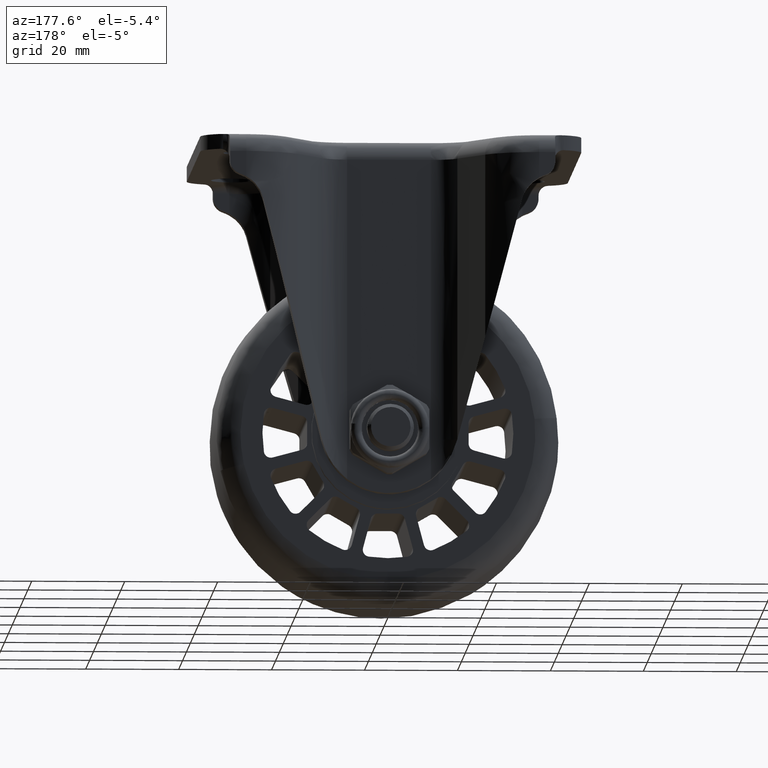
[diagram: clean part render]
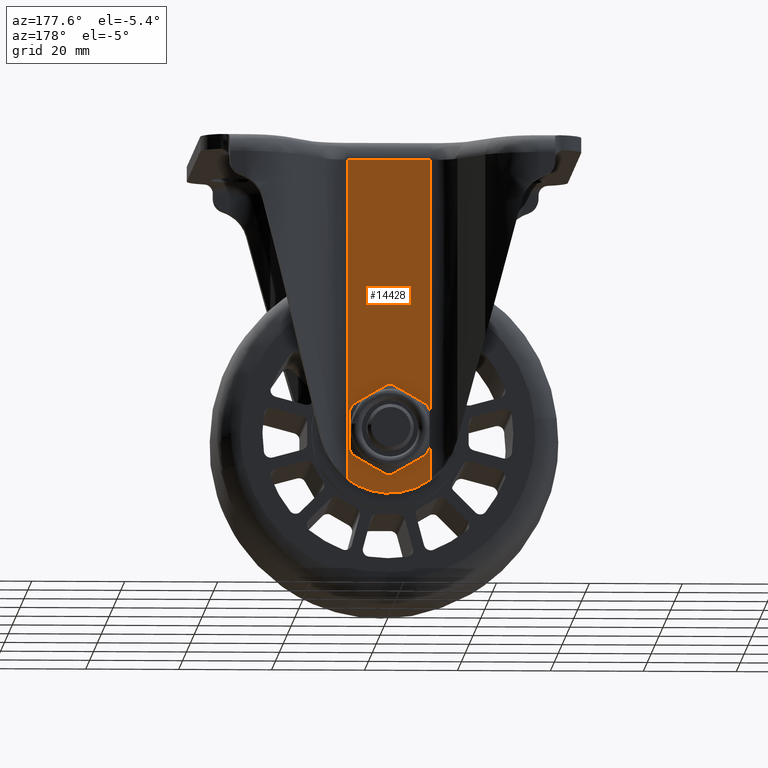
[diagram: same view with one face highlighted and labeled with its STEP entity id]
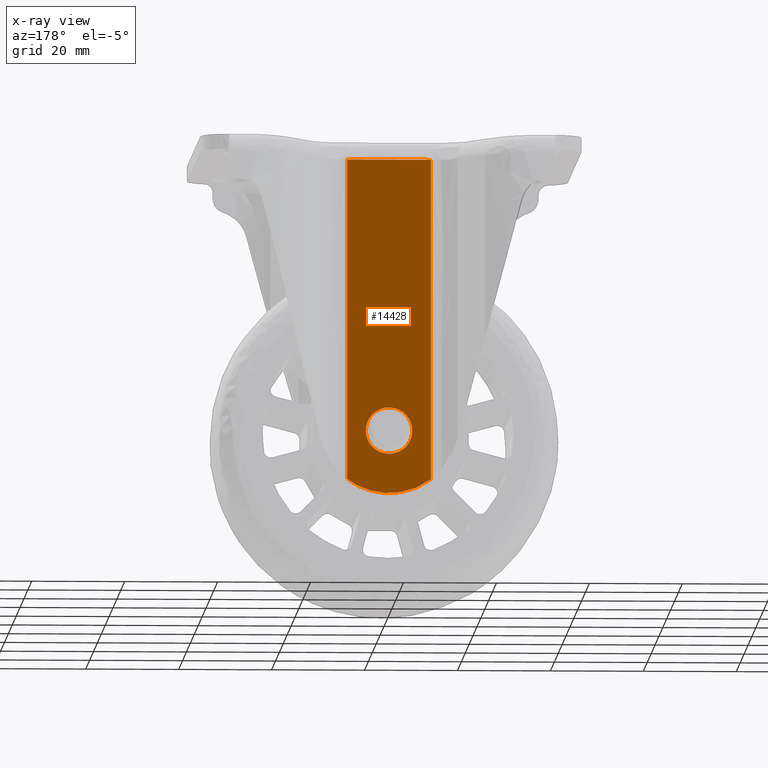
[diagram: x-ray of the same camera — body ghosted, the highlighted face saturated]
A machine part, auxiliary view. The second image highlights one B-rep face of the part: STEP entity #14428.
The next image is the same camera in x-ray: the body ghosted, the highlighted face saturated — about 0% of this face is hidden behind the body in this view.
In plain terms, the highlighted face is a freeform B-spline surface patch.
Its self-contained STEP definition (entity closure, byte-faithful):
#6301=CARTESIAN_POINT('',(-3.069330818615148,25.699997000000149,-66.447050585677459));
#6302=VERTEX_POINT('',#6301);
#6303=CARTESIAN_POINT('',(0.0,25.699997000000149,-67.500000000000000));
#6304=VERTEX_POINT('',#6303);
#6305=CARTESIAN_POINT('',(-3.069330818615301,25.699997000000149,-66.447050585677644));
#6306=CARTESIAN_POINT('',(-1.715275212330114,25.699997000000149,-67.500000000000000));
#6307=CARTESIAN_POINT('',(0.0,25.699997000000149,-67.500000000000000));
#6315=(BOUNDED_CURVE()B_SPLINE_CURVE(2,(#6305,#6306,#6307),.UNSPECIFIED.,.F.,.U.)B_SPLINE_CURVE_WITH_KNOTS((3,3),(0.893802223641509,1.0),.UNSPECIFIED.)CURVE()GEOMETRIC_REPRESENTATION_ITEM()RATIONAL_B_SPLINE_CURVE((0.856866820007404,0.875581565806122,1.0))REPRESENTATION_ITEM(''));
#6316=EDGE_CURVE('',#6302,#6304,#6315,.T.);
#6359=CARTESIAN_POINT('',(-3.566252441452725,25.699997000000149,-58.995453877628023));
#6360=VERTEX_POINT('',#6359);
#6366=CARTESIAN_POINT('',(0.0,25.699997000000149,-57.500000000000000));
#6367=VERTEX_POINT('',#6366);
#6368=CARTESIAN_POINT('',(0.0,25.699997000000149,-57.500000000000000));
#6369=CARTESIAN_POINT('',(-2.096674337066742,25.699997000000153,-57.499999999999993));
#6370=CARTESIAN_POINT('',(-3.566252441452726,25.699997000000149,-58.995453877628023));
#6378=(BOUNDED_CURVE()B_SPLINE_CURVE(2,(#6368,#6369,#6370),.UNSPECIFIED.,.F.,.U.)B_SPLINE_CURVE_WITH_KNOTS((3,3),(0.500000000000000,0.626316774441586),.UNSPECIFIED.)CURVE()GEOMETRIC_REPRESENTATION_ITEM()RATIONAL_B_SPLINE_CURVE((1.0,0.852010693374684,0.853569641667422))REPRESENTATION_ITEM(''));
#6379=EDGE_CURVE('',#6367,#6360,#6378,.T.);
#6381=CARTESIAN_POINT('',(0.0,25.699997000000149,-67.500000000000000));
#6382=CARTESIAN_POINT('',(5.000000000000001,25.699997000000156,-67.500000000000000));
#6383=CARTESIAN_POINT('',(5.0,25.699997000000149,-62.500000000000000));
#6384=CARTESIAN_POINT('',(5.000000000000001,25.699997000000156,-57.499999999999986));
#6385=CARTESIAN_POINT('',(0.0,25.699997000000149,-57.500000000000000));
#6393=(BOUNDED_CURVE()B_SPLINE_CURVE(2,(#6381,#6382,#6383,#6384,#6385),.UNSPECIFIED.,.F.,.U.)B_SPLINE_CURVE_WITH_KNOTS((3,2,3),(0.0,0.250000000000000,0.500000000000000),.UNSPECIFIED.)CURVE()GEOMETRIC_REPRESENTATION_ITEM()RATIONAL_B_SPLINE_CURVE((1.0,0.707106781186548,1.0,0.707106781186548,1.0))REPRESENTATION_ITEM(''));
#6394=EDGE_CURVE('',#6304,#6367,#6393,.T.);
#6417=CARTESIAN_POINT('',(-3.566252441452726,25.699997000000149,-58.995453877628023));
#6418=CARTESIAN_POINT('',(-5.0,25.699997000000153,-60.454446318771552));
#6419=CARTESIAN_POINT('',(-5.0,25.699997000000149,-62.500000000000000));
#6420=CARTESIAN_POINT('',(-5.000000000000001,25.699997000000149,-64.945711220918156));
#6421=CARTESIAN_POINT('',(-3.069330818615299,25.699997000000149,-66.447050585677644));
#6429=(BOUNDED_CURVE()B_SPLINE_CURVE(2,(#6417,#6418,#6419,#6420,#6421),.UNSPECIFIED.,.F.,.U.)B_SPLINE_CURVE_WITH_KNOTS((3,2,3),(0.626316774441586,0.750000000000000,0.893802223641509),.UNSPECIFIED.)CURVE()GEOMETRIC_REPRESENTATION_ITEM()RATIONAL_B_SPLINE_CURVE((0.853569641667422,0.855096087811864,1.0,0.831525215380426,0.856866820007404))REPRESENTATION_ITEM(''));
#6430=EDGE_CURVE('',#6360,#6302,#6429,.T.);
#8503=CARTESIAN_POINT('',(-9.000004537855819,25.699997000000149,-72.999996596606906));
#8504=VERTEX_POINT('',#8503);
#8532=CARTESIAN_POINT('',(9.0,25.699997000000099,-73.0));
#8533=VERTEX_POINT('',#8532);
#8534=CARTESIAN_POINT('',(-9.000004537855775,25.699997000000149,-72.999996596606834));
#8535=CARTESIAN_POINT('',(-0.000003545200833,25.699997000000153,-79.750002658900627));
#8536=CARTESIAN_POINT('',(8.999999999999996,25.699997000000149,-73.000000000000014));
#8544=(BOUNDED_CURVE()B_SPLINE_CURVE(2,(#8534,#8535,#8536),.UNSPECIFIED.,.F.,.U.)CURVE()GEOMETRIC_REPRESENTATION_ITEM()QUASI_UNIFORM_CURVE()RATIONAL_B_SPLINE_CURVE((1.0,0.799999886553575,1.0))REPRESENTATION_ITEM(''));
#8545=EDGE_CURVE('',#8504,#8533,#8544,.T.);
#12733=CARTESIAN_POINT('',(-9.000004537855819,25.699997000001702,-4.0));
#12734=VERTEX_POINT('',#12733);
#12794=CARTESIAN_POINT('',(9.0,25.699997000000099,-4.0));
#12795=VERTEX_POINT('',#12794);
#12809=CARTESIAN_POINT('',(-9.000004537855819,25.699997000001702,-4.0));
#12810=CARTESIAN_POINT('',(9.0,25.699997000000099,-4.0));
#12811=QUASI_UNIFORM_CURVE('',1,(#12809,#12810),.UNSPECIFIED.,.F.,.U.);
#12812=EDGE_CURVE('',#12734,#12795,#12811,.T.);
#14392=CARTESIAN_POINT('',(9.0,25.699997000000099,-73.0));
#14393=CARTESIAN_POINT('',(9.0,25.699997000000099,-4.0));
#14394=QUASI_UNIFORM_CURVE('',1,(#14392,#14393),.UNSPECIFIED.,.F.,.U.);
#14395=EDGE_CURVE('',#8533,#12795,#14394,.T.);
#14407=CARTESIAN_POINT('',(-9.899105067576544,25.699997000000099,-0.403600139549977));
#14408=CARTESIAN_POINT('',(-9.899105067576544,25.699997000000099,-79.596401791640417));
#14409=CARTESIAN_POINT('',(9.899100690653304,25.699997000000099,-0.403600139549977));
#14410=CARTESIAN_POINT('',(9.899100690653304,25.699997000000099,-79.596401791640417));
#14411=B_SPLINE_SURFACE_WITH_KNOTS('',1,1,((#14407,#14409),(#14408,#14410)),.UNSPECIFIED.,.F.,.F.,.U.,(2,2),(2,2),(0.0,79.192801652090438),(0.0,19.798205758229852),.UNSPECIFIED.);
#14412=ORIENTED_EDGE('',*,*,#8545,.F.);
#14413=CARTESIAN_POINT('',(-9.000004537855819,25.699997000000149,-72.999996596606906));
#14414=CARTESIAN_POINT('',(-9.000004537855819,25.699997000001702,-4.0));
#14415=QUASI_UNIFORM_CURVE('',1,(#14413,#14414),.UNSPECIFIED.,.F.,.U.);
#14416=EDGE_CURVE('',#8504,#12734,#14415,.T.);
#14417=ORIENTED_EDGE('',*,*,#14416,.T.);
#14418=ORIENTED_EDGE('',*,*,#12812,.T.);
#14419=ORIENTED_EDGE('',*,*,#14395,.F.);
#14420=EDGE_LOOP('',(#14412,#14417,#14418,#14419));
#14421=FACE_OUTER_BOUND('',#14420,.T.);
#14422=ORIENTED_EDGE('',*,*,#6394,.T.);
#14423=ORIENTED_EDGE('',*,*,#6379,.T.);
#14424=ORIENTED_EDGE('',*,*,#6430,.T.);
#14425=ORIENTED_EDGE('',*,*,#6316,.T.);
#14426=EDGE_LOOP('',(#14422,#14423,#14424,#14425));
#14427=FACE_BOUND('',#14426,.T.);
#14428=ADVANCED_FACE('',(#14421,#14427),#14411,.F.);